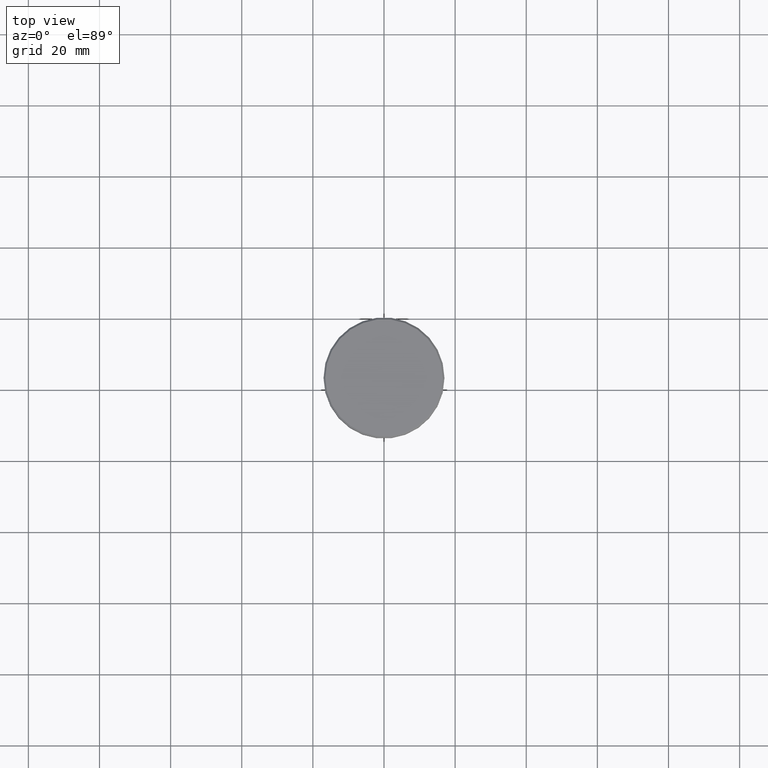
[diagram: clean part render]
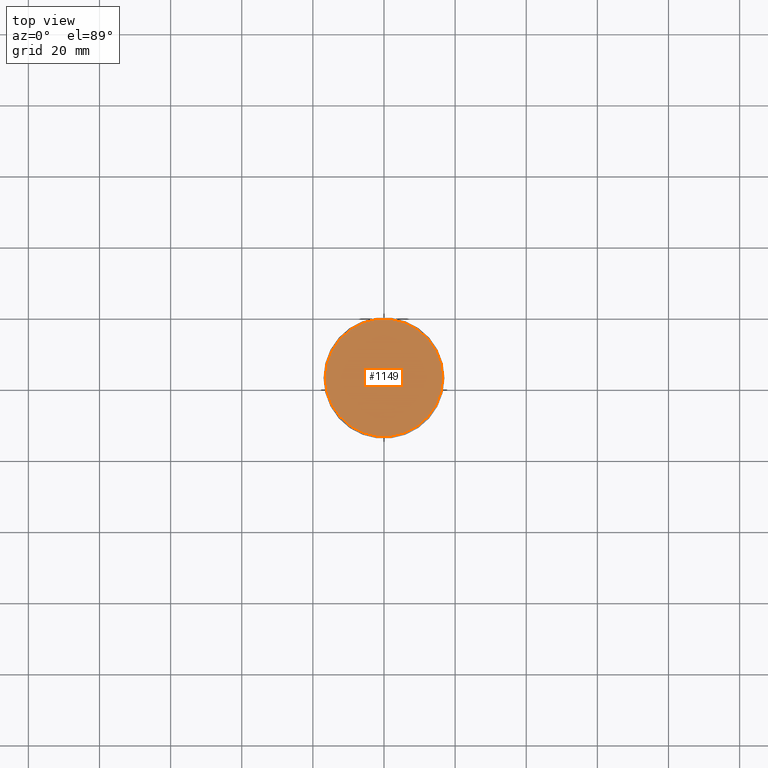
[diagram: same view with one face highlighted and labeled with its STEP entity id]
A machine part, top view. The second image highlights one B-rep face of the part: STEP entity #1149.
In plain terms, the highlighted planar face has unit normal (0, -0, 1).
Its self-contained STEP definition (entity closure, byte-faithful):
#14 = CARTESIAN_POINT ( 'NONE',  ( -16.49999999999995737, 0.000000000000000000, 0.000000000000000000 ) ) ;
#70 = PLANE ( 'NONE',  #947 ) ;
#99 = CIRCLE ( 'NONE', #520, 16.49999999999995737 ) ;
#123 = EDGE_LOOP ( 'NONE', ( #210, #569 ) ) ;
#153 = CARTESIAN_POINT ( 'NONE',  ( 0.000000000000000000, 0.000000000000000000, 0.000000000000000000 ) ) ;
#210 = ORIENTED_EDGE ( 'NONE', *, *, #1165, .T. ) ;
#244 = CIRCLE ( 'NONE', #388, 16.49999999999995737 ) ;
#281 = DIRECTION ( 'NONE',  ( -0.000000000000000000, -0.000000000000000000, 1.000000000000000000 ) ) ;
#328 = DIRECTION ( 'NONE',  ( 1.000000000000000000, 0.000000000000000000, 0.000000000000000000 ) ) ;
#388 = AXIS2_PLACEMENT_3D ( 'NONE', #153, #516, #328 ) ;
#434 = DIRECTION ( 'NONE',  ( 1.000000000000000000, 0.000000000000000000, 0.000000000000000000 ) ) ;
#509 = EDGE_CURVE ( 'NONE', #1034, #779, #244, .T. ) ;
#510 = CARTESIAN_POINT ( 'NONE',  ( 16.49999999999995737, 2.051283388571814520E-15, 0.000000000000000000 ) ) ;
#516 = DIRECTION ( 'NONE',  ( -0.000000000000000000, -0.000000000000000000, 1.000000000000000000 ) ) ;
#520 = AXIS2_PLACEMENT_3D ( 'NONE', #630, #281, #798 ) ;
#569 = ORIENTED_EDGE ( 'NONE', *, *, #509, .T. ) ;
#630 = CARTESIAN_POINT ( 'NONE',  ( 0.000000000000000000, 0.000000000000000000, 0.000000000000000000 ) ) ;
#779 = VERTEX_POINT ( 'NONE', #14 ) ;
#798 = DIRECTION ( 'NONE',  ( 1.000000000000000000, 0.000000000000000000, 0.000000000000000000 ) ) ;
#893 = FACE_OUTER_BOUND ( 'NONE', #123, .T. ) ;
#947 = AXIS2_PLACEMENT_3D ( 'NONE', #983, #1079, #434 ) ;
#983 = CARTESIAN_POINT ( 'NONE',  ( 0.000000000000000000, 0.000000000000000000, 0.000000000000000000 ) ) ;
#1034 = VERTEX_POINT ( 'NONE', #510 ) ;
#1079 = DIRECTION ( 'NONE',  ( 0.000000000000000000, -0.000000000000000000, 1.000000000000000000 ) ) ;
#1149 = ADVANCED_FACE ( 'NONE', ( #893 ), #70, .T. ) ;
#1165 = EDGE_CURVE ( 'NONE', #779, #1034, #99, .T. ) ;